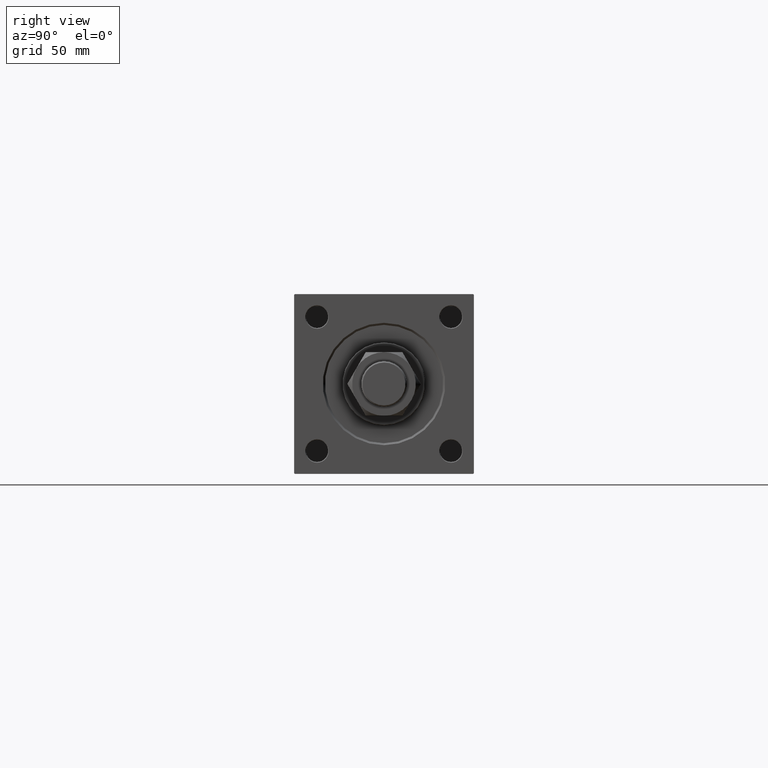
[diagram: clean part render]
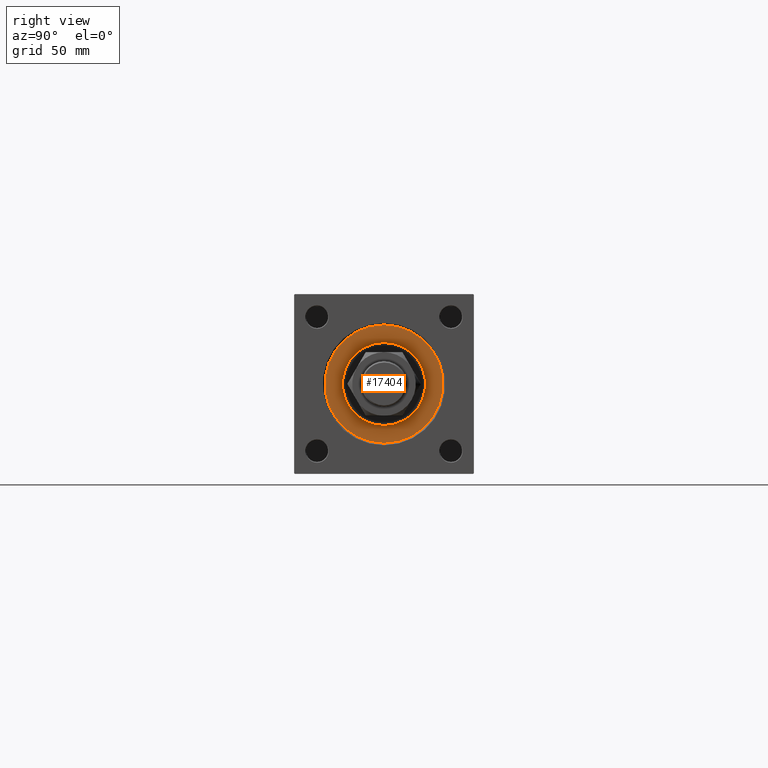
[diagram: same view with one face highlighted and labeled with its STEP entity id]
A machine part, right view. The second image highlights one B-rep face of the part: STEP entity #17404.
In plain terms, the highlighted planar face has unit normal (1, 0, 0).
Its self-contained STEP definition (entity closure, byte-faithful):
#1 = CIRCLE ( 'NONE', #6120, 42.75000000000000000 ) ;
#2107 = CARTESIAN_POINT ( 'NONE',  ( 42.75000000000000000, 5.235365066354935472E-15, 28.69999999999999929 ) ) ;
#4558 = ORIENTED_EDGE ( 'NONE', *, *, #12937, .F. ) ;
#5025 = CIRCLE ( 'NONE', #31260, 30.00000000000000000 ) ;
#6120 = AXIS2_PLACEMENT_3D ( 'NONE', #25934, #21726, #17491 ) ;
#7453 = VERTEX_POINT ( 'NONE', #2107 ) ;
#9392 = CARTESIAN_POINT ( 'NONE',  ( 30.00000000000000000, 3.673940397442059178E-15, 28.69999999999999929 ) ) ;
#9893 = VERTEX_POINT ( 'NONE', #35160 ) ;
#10743 = FACE_BOUND ( 'NONE', #16828, .T. ) ;
#11720 = AXIS2_PLACEMENT_3D ( 'NONE', #16675, #32828, #26415 ) ;
#12937 = EDGE_CURVE ( 'NONE', #48544, #9893, #18252, .T. ) ;
#15487 = FACE_OUTER_BOUND ( 'NONE', #25012, .T. ) ;
#16675 = CARTESIAN_POINT ( 'NONE',  ( 0.000000000000000000, 0.000000000000000000, 28.69999999999999929 ) ) ;
#16828 = EDGE_LOOP ( 'NONE', ( #46715, #4558 ) ) ;
#17404 = ADVANCED_FACE ( 'NONE', ( #10743, #15487 ), #46991, .T. ) ;
#17491 = DIRECTION ( 'NONE',  ( 1.000000000000000000, 0.000000000000000000, 0.000000000000000000 ) ) ;
#18252 = CIRCLE ( 'NONE', #24989, 30.00000000000000000 ) ;
#20919 = VERTEX_POINT ( 'NONE', #23681 ) ;
#21465 = DIRECTION ( 'NONE',  ( 1.000000000000000000, 0.000000000000000000, 0.000000000000000000 ) ) ;
#21726 = DIRECTION ( 'NONE',  ( 0.000000000000000000, 0.000000000000000000, 1.000000000000000000 ) ) ;
#21769 = DIRECTION ( 'NONE',  ( 1.000000000000000000, 0.000000000000000000, 0.000000000000000000 ) ) ;
#23681 = CARTESIAN_POINT ( 'NONE',  ( -42.75000000000000000, 0.000000000000000000, 28.69999999999999929 ) ) ;
#24410 = CIRCLE ( 'NONE', #11720, 42.75000000000000000 ) ;
#24989 = AXIS2_PLACEMENT_3D ( 'NONE', #36824, #32858, #21465 ) ;
#25012 = EDGE_LOOP ( 'NONE', ( #33415, #45036 ) ) ;
#25934 = CARTESIAN_POINT ( 'NONE',  ( 0.000000000000000000, 0.000000000000000000, 28.69999999999999929 ) ) ;
#26415 = DIRECTION ( 'NONE',  ( 1.000000000000000000, 0.000000000000000000, 0.000000000000000000 ) ) ;
#31260 = AXIS2_PLACEMENT_3D ( 'NONE', #45313, #34464, #21769 ) ;
#31380 = DIRECTION ( 'NONE',  ( 0.000000000000000000, 0.000000000000000000, 1.000000000000000000 ) ) ;
#31637 = CARTESIAN_POINT ( 'NONE',  ( 0.000000000000000000, 0.000000000000000000, 28.69999999999999929 ) ) ;
#32828 = DIRECTION ( 'NONE',  ( 0.000000000000000000, 0.000000000000000000, 1.000000000000000000 ) ) ;
#32858 = DIRECTION ( 'NONE',  ( 0.000000000000000000, 0.000000000000000000, 1.000000000000000000 ) ) ;
#33415 = ORIENTED_EDGE ( 'NONE', *, *, #44274, .T. ) ;
#34464 = DIRECTION ( 'NONE',  ( 0.000000000000000000, 0.000000000000000000, 1.000000000000000000 ) ) ;
#35160 = CARTESIAN_POINT ( 'NONE',  ( -30.00000000000000000, 0.000000000000000000, 28.69999999999999929 ) ) ;
#36824 = CARTESIAN_POINT ( 'NONE',  ( 0.000000000000000000, 0.000000000000000000, 28.69999999999999929 ) ) ;
#42917 = AXIS2_PLACEMENT_3D ( 'NONE', #31637, #31380, #47765 ) ;
#44274 = EDGE_CURVE ( 'NONE', #20919, #7453, #24410, .T. ) ;
#45036 = ORIENTED_EDGE ( 'NONE', *, *, #50961, .T. ) ;
#45313 = CARTESIAN_POINT ( 'NONE',  ( 0.000000000000000000, 0.000000000000000000, 28.69999999999999929 ) ) ;
#46715 = ORIENTED_EDGE ( 'NONE', *, *, #48923, .F. ) ;
#46991 = PLANE ( 'NONE',  #42917 ) ;
#47765 = DIRECTION ( 'NONE',  ( 1.000000000000000000, 0.000000000000000000, -0.000000000000000000 ) ) ;
#48544 = VERTEX_POINT ( 'NONE', #9392 ) ;
#48923 = EDGE_CURVE ( 'NONE', #9893, #48544, #5025, .T. ) ;
#50961 = EDGE_CURVE ( 'NONE', #7453, #20919, #1, .T. ) ;